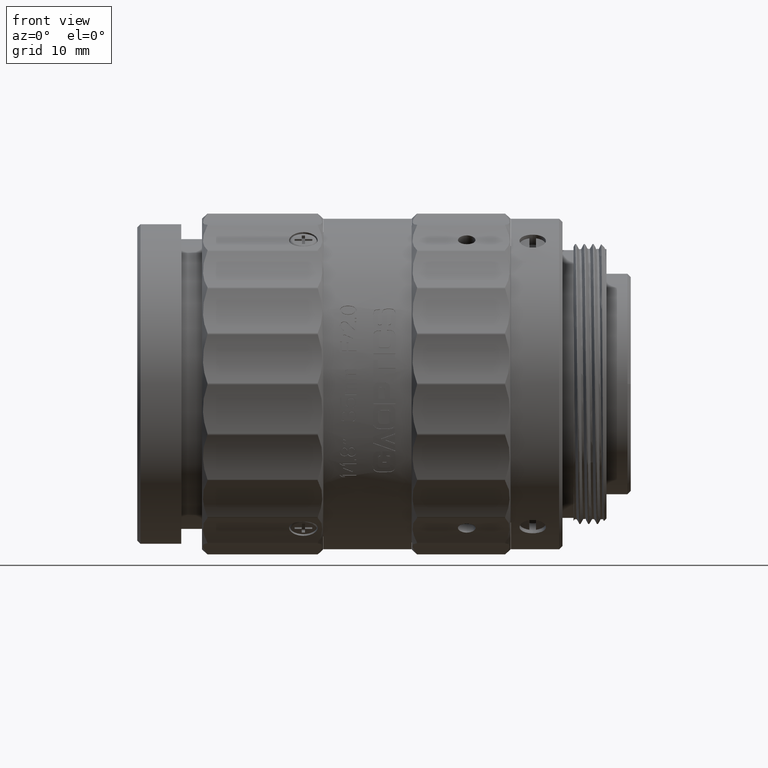
[diagram: clean part render]
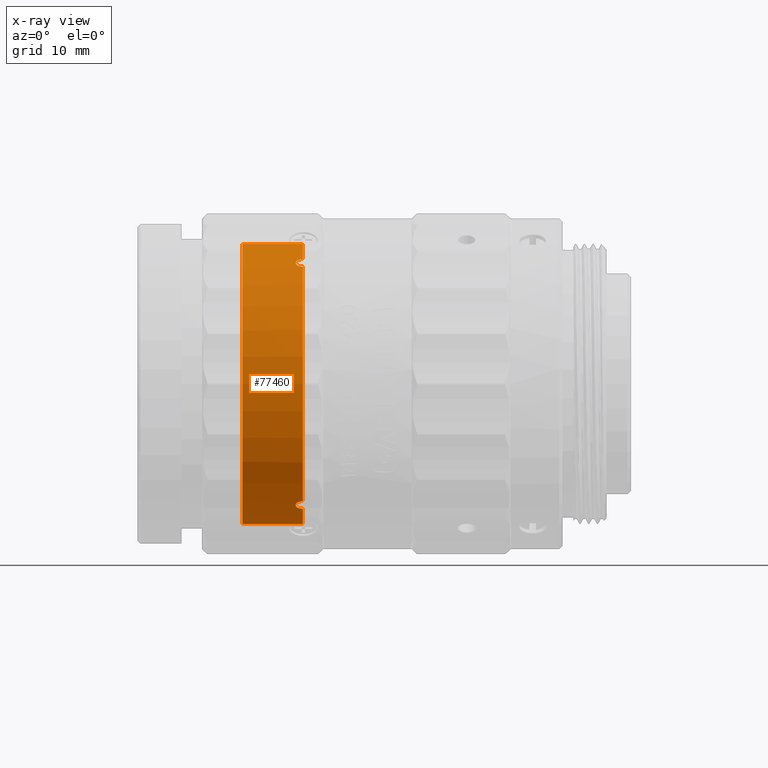
[diagram: x-ray — body ghosted, one internal face saturated and labeled with its STEP entity id]
A machine part, front view, then the same camera in x-ray: the body is ghosted and one INTERNAL B-rep face — a face not visible from any outside direction — is saturated and labeled: STEP entity #77460.
In plain terms, the highlighted cylindrical surface (partial cylindrical patch) has radius 12.7 mm, axis along (-1, -0, -0).
Its self-contained STEP definition (entity closure, byte-faithful):
#257 = CARTESIAN_POINT ( 'NONE',  ( -23.73614714600021713, -5.746998403679032030, -11.32528891231968871 ) ) ;
#393 = AXIS2_PLACEMENT_3D ( 'NONE', #40974, #65210, #24129 ) ;
#717 = CIRCLE ( 'NONE', #9533, 12.69999999999999929 ) ;
#1801 = CARTESIAN_POINT ( 'NONE',  ( -23.55999999999999517, 0.000000000000000000, -1.021912466205703869E-32 ) ) ;
#3296 = EDGE_CURVE ( 'NONE', #7170, #61925, #56711, .T. ) ;
#3841 = ORIENTED_EDGE ( 'NONE', *, *, #3296, .T. ) ;
#5768 = CARTESIAN_POINT ( 'NONE',  ( -23.90334551176621503, -6.866921881408965866, -10.68418349193258088 ) ) ;
#5841 = AXIS2_PLACEMENT_3D ( 'NONE', #10442, #76599, #46852 ) ;
#6162 = CARTESIAN_POINT ( 'NONE',  ( -23.73614749909198096, -6.934488680222754553, -10.63969108310495315 ) ) ;
#7080 = ORIENTED_EDGE ( 'NONE', *, *, #75151, .F. ) ;
#7170 = VERTEX_POINT ( 'NONE', #56726 ) ;
#8593 = ORIENTED_EDGE ( 'NONE', *, *, #30036, .F. ) ;
#9373 = DIRECTION ( 'NONE',  ( -2.731847993664263218E-16, 0.000000000000000000, 1.000000000000000000 ) ) ;
#9533 = AXIS2_PLACEMENT_3D ( 'NONE', #1801, #12431, #42587 ) ;
#10442 = CARTESIAN_POINT ( 'NONE',  ( -23.55999999999999517, 0.000000000000000000, 2.101233888230099639E-31 ) ) ;
#10497 = CARTESIAN_POINT ( 'NONE',  ( -23.55999999999999872, 0.000000000000000000, 12.69999999999999929 ) ) ;
#11108 = EDGE_CURVE ( 'NONE', #17961, #75934, #20482, .T. ) ;
#11290 = CYLINDRICAL_SURFACE ( 'NONE', #49771, 12.69999999999999929 ) ;
#12431 = DIRECTION ( 'NONE',  ( -1.000000000000000000, -0.000000000000000000, -1.365923996832131609E-16 ) ) ;
#13673 = CARTESIAN_POINT ( 'NONE',  ( -23.90334551176568567, -5.819313382000975921, 11.28902054107097364 ) ) ;
#14799 = VERTEX_POINT ( 'NONE', #72856 ) ;
#17908 = CARTESIAN_POINT ( 'NONE',  ( -24.20996323870124556, -6.500918520333676121, -10.91138744005246863 ) ) ;
#17961 = VERTEX_POINT ( 'NONE', #62368 ) ;
#20482 = B_SPLINE_CURVE_WITH_KNOTS ( 'NONE', 3,
 ( #70798, #6162, #5768, #53562, #17908, #47670, #60200, #71177, #257, #64897 ),
 .UNSPECIFIED., .F., .F.,
 ( 4, 2, 2, 2, 4 ),
 ( 0.000000000000000000, 0.0005222711492066840506, 0.001044542298413368101, 0.001566813447620052152, 0.002089084596826736202 ),
 .UNSPECIFIED. ) ;
#21585 = CARTESIAN_POINT ( 'NONE',  ( -23.55999999999999162, 1.555301434917138433E-15, -12.69999999999999929 ) ) ;
#21763 = CARTESIAN_POINT ( 'NONE',  ( -23.55999999999999872, -5.735726949866236879, -11.33099449989179952 ) ) ;
#22854 = EDGE_CURVE ( 'NONE', #40186, #7170, #42497, .T. ) ;
#23910 = VECTOR ( 'NONE', #67899, 1000.000000000000000 ) ;
#24129 = DIRECTION ( 'NONE',  ( 0.000000000000000000, 0.000000000000000000, 1.000000000000000000 ) ) ;
#24298 = CARTESIAN_POINT ( 'NONE',  ( -23.73614749909170740, -5.746998426273854044, 11.32528890088223328 ) ) ;
#25077 = CARTESIAN_POINT ( 'NONE',  ( -24.20996323870022593, -6.199079453450061727, 11.08565430656961404 ) ) ;
#27094 = VECTOR ( 'NONE', #65564, 1000.000000000000000 ) ;
#27328 = ORIENTED_EDGE ( 'NONE', *, *, #72795, .F. ) ;
#27954 = VERTEX_POINT ( 'NONE', #47380 ) ;
#30036 = EDGE_CURVE ( 'NONE', #17961, #27954, #47764, .T. ) ;
#31710 = CARTESIAN_POINT ( 'NONE',  ( -24.21003673012273438, -6.500664676021737698, 10.91153867448928061 ) ) ;
#32794 = AXIS2_PLACEMENT_3D ( 'NONE', #44996, #56753, #9373 ) ;
#33635 = EDGE_CURVE ( 'NONE', #14799, #62462, #74646, .T. ) ;
#34583 = CARTESIAN_POINT ( 'NONE',  ( -29.05999999999999517, 0.000000000000000000, 12.69999999999999929 ) ) ;
#36212 = CARTESIAN_POINT ( 'NONE',  ( -23.55999999999999872, 0.000000000000000000, 12.69999999999999929 ) ) ;
#40186 = VERTEX_POINT ( 'NONE', #21585 ) ;
#40974 = CARTESIAN_POINT ( 'NONE',  ( -29.05999999999999517, 0.000000000000000000, -7.512581982576725330E-16 ) ) ;
#42302 = CARTESIAN_POINT ( 'NONE',  ( -23.90397445374880903, -6.866461006814951418, 10.68447628390105386 ) ) ;
#42497 = LINE ( 'NONE', #60494, #23910 ) ;
#42587 = DIRECTION ( 'NONE',  ( -2.731847993664263218E-16, 0.000000000000000000, 1.000000000000000000 ) ) ;
#43450 = CARTESIAN_POINT ( 'NONE',  ( -23.73614714599995068, -6.934488701423618728, 10.63969106925707564 ) ) ;
#44996 = CARTESIAN_POINT ( 'NONE',  ( -23.55999999999999517, 0.000000000000000000, -2.901801109468342086E-47 ) ) ;
#46166 = DIRECTION ( 'NONE',  ( -1.000000000000000000, -0.000000000000000000, -1.365923996832131609E-16 ) ) ;
#46852 = DIRECTION ( 'NONE',  ( -2.731847993664263218E-16, 0.000000000000000000, 1.000000000000000000 ) ) ;
#47380 = CARTESIAN_POINT ( 'NONE',  ( -23.55999999999999162, -6.945065612110979281, 10.63278249770367445 ) ) ;
#47670 = CARTESIAN_POINT ( 'NONE',  ( -24.21003673012370427, -6.199337348469784459, -11.08551008816553285 ) ) ;
#47697 = DIRECTION ( 'NONE',  ( -2.731847993664263218E-16, 0.000000000000000000, 1.000000000000000000 ) ) ;
#47764 = CIRCLE ( 'NONE', #32794, 12.69999999999999929 ) ;
#47770 = CARTESIAN_POINT ( 'NONE',  ( -23.55999999999403727, -5.735726949866741364, 11.33099449989154195 ) ) ;
#48047 = ORIENTED_EDGE ( 'NONE', *, *, #11108, .T. ) ;
#48158 = CARTESIAN_POINT ( 'NONE',  ( -24.14149376695949556, -6.045728259263657201, 11.16940297553090922 ) ) ;
#48516 = B_SPLINE_CURVE_WITH_KNOTS ( 'NONE', 3,
 ( #47770, #24298, #13673, #48158, #25077, #31710, #48552, #42302, #43450, #72426 ),
 .UNSPECIFIED., .F., .F.,
 ( 4, 2, 2, 2, 4 ),
 ( 0.000000000000000000, 0.0005222711492059076534, 0.001044542298411815307, 0.001566813447617723069, 0.002089084596823630614 ),
 .UNSPECIFIED. ) ;
#48552 = CARTESIAN_POINT ( 'NONE',  ( -24.14135081251171755, -6.650140817201282140, 10.82044118004195532 ) ) ;
#48734 = LINE ( 'NONE', #36212, #27094 ) ;
#49771 = AXIS2_PLACEMENT_3D ( 'NONE', #70044, #46166, #47697 ) ;
#50588 = EDGE_LOOP ( 'NONE', ( #27328, #65212, #3841, #7080, #64477, #51376, #8593, #48047 ) ) ;
#51376 = ORIENTED_EDGE ( 'NONE', *, *, #59740, .T. ) ;
#53562 = CARTESIAN_POINT ( 'NONE',  ( -24.14149376696040861, -6.650122592280745870, -10.82045574466691207 ) ) ;
#56711 = CIRCLE ( 'NONE', #393, 12.69999999999999929 ) ;
#56726 = CARTESIAN_POINT ( 'NONE',  ( -29.05999999999999517, 1.555301434917138433E-15, -12.69999999999999929 ) ) ;
#56753 = DIRECTION ( 'NONE',  ( -1.000000000000000000, -0.000000000000000000, -1.365923996832131609E-16 ) ) ;
#59740 = EDGE_CURVE ( 'NONE', #14799, #27954, #48516, .T. ) ;
#60200 = CARTESIAN_POINT ( 'NONE',  ( -24.14135081251258441, -6.045706533467270383, -11.16941147646309673 ) ) ;
#60494 = CARTESIAN_POINT ( 'NONE',  ( -23.55999999999999162, 1.555301434917138433E-15, -12.69999999999999929 ) ) ;
#61925 = VERTEX_POINT ( 'NONE', #34583 ) ;
#62368 = CARTESIAN_POINT ( 'NONE',  ( -23.55999999999404082, -6.945065612112180986, -10.63278249770288930 ) ) ;
#62462 = VERTEX_POINT ( 'NONE', #10497 ) ;
#64148 = FACE_OUTER_BOUND ( 'NONE', #50588, .T. ) ;
#64477 = ORIENTED_EDGE ( 'NONE', *, *, #33635, .F. ) ;
#64897 = CARTESIAN_POINT ( 'NONE',  ( -23.55999999999999872, -5.735726949866236879, -11.33099449989179952 ) ) ;
#65210 = DIRECTION ( 'NONE',  ( -1.000000000000000000, -0.000000000000000000, -1.365923996832131609E-16 ) ) ;
#65212 = ORIENTED_EDGE ( 'NONE', *, *, #22854, .T. ) ;
#65564 = DIRECTION ( 'NONE',  ( -1.000000000000000000, -0.000000000000000000, -1.365923996832131609E-16 ) ) ;
#67899 = DIRECTION ( 'NONE',  ( -1.000000000000000000, -0.000000000000000000, -1.365923996832131609E-16 ) ) ;
#70044 = CARTESIAN_POINT ( 'NONE',  ( -23.55999999999999517, 0.000000000000000000, 0.000000000000000000 ) ) ;
#70798 = CARTESIAN_POINT ( 'NONE',  ( -23.55999999999404082, -6.945065612112180986, -10.63278249770288930 ) ) ;
#71177 = CARTESIAN_POINT ( 'NONE',  ( -23.90397445374932062, -5.819797384579119992, -11.28876780794964851 ) ) ;
#72426 = CARTESIAN_POINT ( 'NONE',  ( -23.55999999999999162, -6.945065612110979281, 10.63278249770367445 ) ) ;
#72795 = EDGE_CURVE ( 'NONE', #40186, #75934, #717, .T. ) ;
#72856 = CARTESIAN_POINT ( 'NONE',  ( -23.55999999999403727, -5.735726949866741364, 11.33099449989154195 ) ) ;
#74646 = CIRCLE ( 'NONE', #5841, 12.69999999999999929 ) ;
#75151 = EDGE_CURVE ( 'NONE', #62462, #61925, #48734, .T. ) ;
#75934 = VERTEX_POINT ( 'NONE', #21763 ) ;
#76599 = DIRECTION ( 'NONE',  ( -1.000000000000000000, -0.000000000000000000, -1.365923996832131609E-16 ) ) ;
#77460 = ADVANCED_FACE ( 'NONE', ( #64148 ), #11290, .F. ) ;